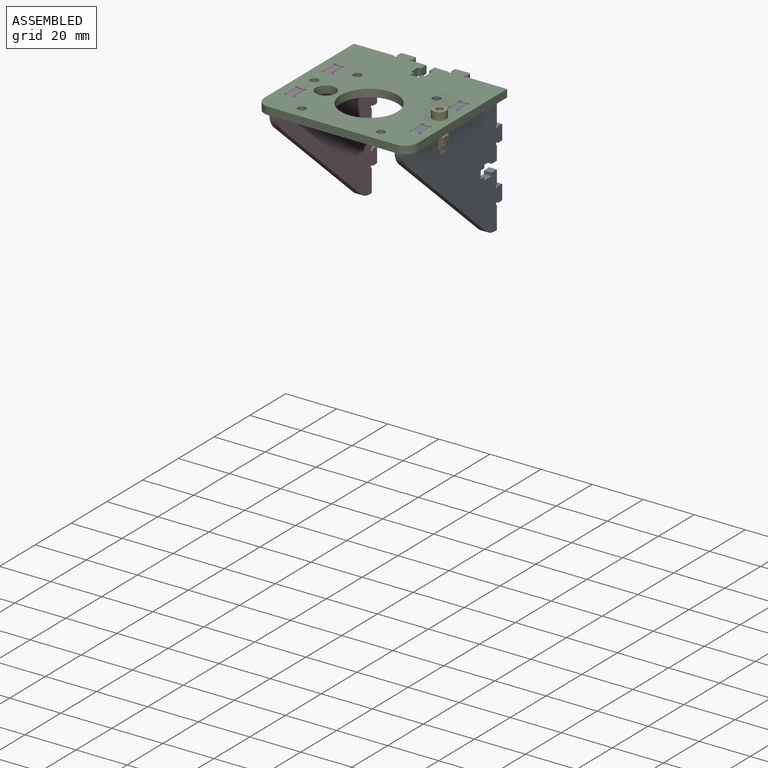
[diagram: assembled view]
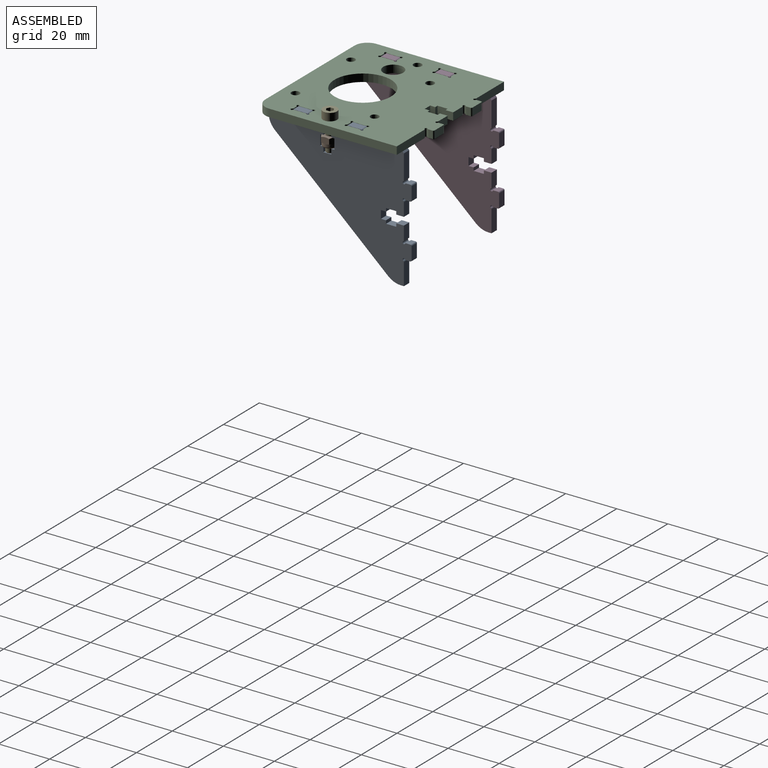
[diagram: assembled view, second angle]
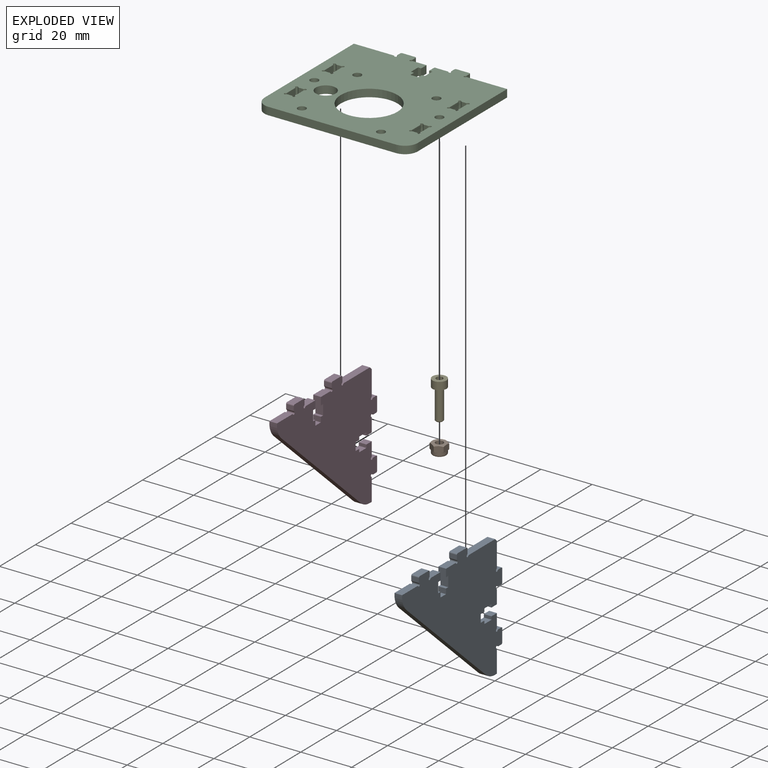
[diagram: exploded view]
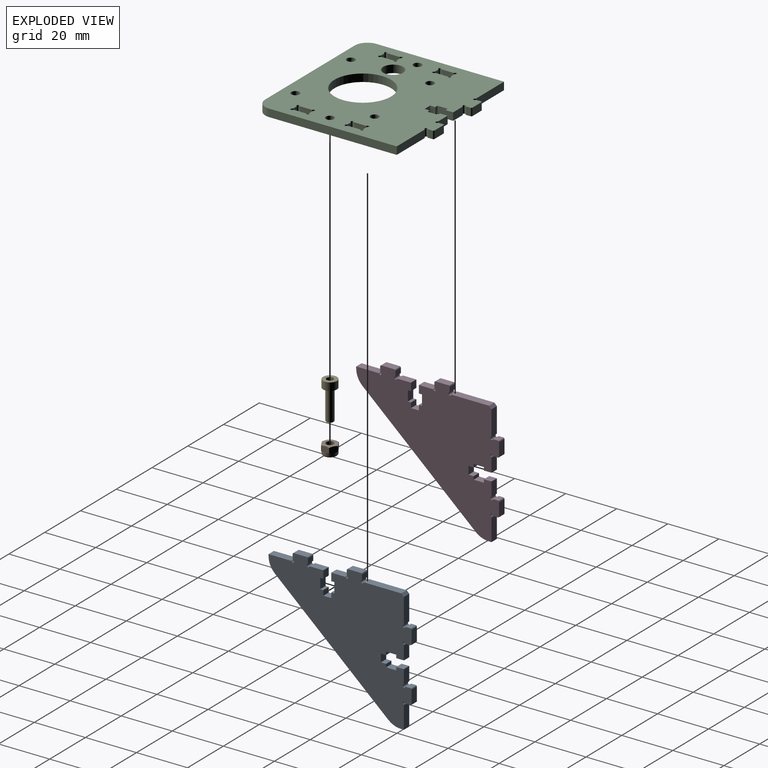
[diagram: exploded view, second angle]
ASSEMBLY  parts=5 mates=4
PART A: 82 faces, bbox 3x51x56 mm
  f0: plane 14.53x3mm, normal (0,-1,0), area 43.6mm2, adj f19,f20,f21,f80
  f1: plane 3x1.63mm, normal (0,0,1), area 4.9mm2, adj f19,f20,f67,f81
  f2: plane 5.18x3mm, normal (0,-1,0), area 15.6mm2, adj f19,f20,f53,f77
  f3: plane 3x1.63mm, normal (0,0,-1), area 4.9mm2, adj f19,f20,f66,f78
  f4: plane 8.53x3mm, normal (0,-1,0), area 25.6mm2, adj f17,f19,f20,f74
  f5: plane 3x1.63mm, normal (0,0,-1), area 4.9mm2, adj f19,f20,f69,f75
  f6: plane 5.18x3mm, normal (0,-1,0), area 15.6mm2, adj f19,f20,f54,f71
  f7: plane 3x1.63mm, normal (0,0,1), area 4.9mm2, adj f19,f20,f68,f72
  f8: plane 8.53x3mm, normal (0,0,1), area 25.6mm2, adj f16,f19,f20,f51
  f9: plane 3x1.63mm, normal (0,1,0), area 4.9mm2, adj f19,f20,f38,f52
  f10: plane 5.18x3mm, normal (0,0,1), area 15.6mm2, adj f19,f20,f24,f48
  f11: plane 3x1.63mm, normal (0,-1,0), area 4.9mm2, adj f19,f20,f37,f49
  f12: plane 9.53x3mm, normal (0,0,1), area 28.6mm2, adj f19,f20,f21,f45
  f13: plane 3x1.63mm, normal (0,-1,0), area 4.9mm2, adj f19,f20,f40,f46
  f14: plane 5.18x3mm, normal (0,0,1), area 15.6mm2, adj f19,f20,f25,f42
  f15: plane 3x1.63mm, normal (0,1,0), area 4.9mm2, adj f19,f20,f39,f43
  f16: plane 3x1.13mm, normal (0,1,0), area 3.4mm2, adj f8,f19,f20,f23
  f17: plane 3x0.65mm, normal (0,0,-1), area 2mm2, adj f4,f19,f20,f22
  f18: plane 44.37x39.85mm, normal (0,0.74,-0.67), area 178.9mm2, adj f19,f20,f22,f23
  f19: plane 56x51mm, normal (1,0,0), area 1454.2mm2, adj f0,f1,f2,f3,f4,f5,f6,f7
  f20: plane 56x51mm, normal (-1,0,0), area 1454.2mm2, adj f0,f1,f2,f3,f4,f5,f6,f7
  f21: plane 3x1mm, normal (0,-0.71,0.71), area 4.2mm2, adj f0,f12,f19,f20
  f22: cylinder r=7.5mm len=5.58mm, axis (-1,0,0), area 18.9mm2, adj f17,f18,f19,f20
  f23: cylinder r=7.5mm len=5.01mm, axis (-1,0,0), area 16.5mm2, adj f16,f18,f19,f20
  f24: plane 3x3mm, normal (0,-1,0), area 9mm2, adj f10,f19,f20,f34
  f25: plane 3x3mm, normal (0,1,0), area 9mm2, adj f14,f19,f20,f26
  f26: plane 3x1.23mm, normal (0,0,-1), area 3.7mm2, adj f19,f20,f25,f27
  f27: plane 4x3mm, normal (0,1,0), area 12mm2, adj f19,f20,f26,f28
  f28: plane 3x1.23mm, normal (0,0,1), area 3.7mm2, adj f19,f20,f27,f29
  f29: plane 3x2mm, normal (0,1,0), area 6mm2, adj f19,f20,f28,f30
  f30: plane 3.1x3mm, normal (0,0,1), area 9.3mm2, adj f19,f20,f29,f31
  f31: plane 3x2mm, normal (0,-1,0), area 6mm2, adj f19,f20,f30,f32
  f32: plane 3x1.23mm, normal (0,0,1), area 3.7mm2, adj f19,f20,f31,f33
  f33: plane 4x3mm, normal (0,-1,0), area 12mm2, adj f19,f20,f32,f34
  f34: plane 3x1.23mm, normal (0,0,-1), area 3.7mm2, adj f19,f20,f24,f33
  f35: plane 5x3mm, normal (0,0,1), area 15mm2, adj f19,f20,f39,f40
  f36: plane 5x3mm, normal (0,0,1), area 15mm2, adj f19,f20,f37,f38
  f37: cylinder r=0.5mm len=3mm, axis (-1,0,0), area 2.4mm2, adj f11,f19,f20,f36
  f38: cylinder r=0.5mm len=3mm, axis (-1,0,0), area 2.4mm2, adj f9,f19,f20,f36
  f39: cylinder r=0.5mm len=3mm, axis (-1,0,0), area 2.4mm2, adj f15,f19,f20,f35
  f40: cylinder r=0.5mm len=3mm, axis (-1,0,0), area 2.4mm2, adj f13,f19,f20,f35
  f41: cylinder r=0.5mm len=3mm, axis (1,0,0), area 5.5mm2, adj f19,f20,f42,f43
  f42: cylinder r=0.5mm len=3mm, axis (1,0,0), area 1.6mm2, adj f14,f19,f20,f41
  f43: cylinder r=0.5mm len=3mm, axis (1,0,0), area 1.6mm2, adj f15,f19,f20,f41
  f44: cylinder r=0.5mm len=3mm, axis (1,0,0), area 5.5mm2, adj f19,f20,f45,f46
  f45: cylinder r=0.5mm len=3mm, axis (1,0,0), area 1.6mm2, adj f12,f19,f20,f44
  f46: cylinder r=0.5mm len=3mm, axis (1,0,0), area 1.6mm2, adj f13,f19,f20,f44
  f47: cylinder r=0.5mm len=3mm, axis (1,0,0), area 5.5mm2, adj f19,f20,f48,f49
  f48: cylinder r=0.5mm len=3mm, axis (1,0,0), area 1.6mm2, adj f10,f19,f20,f47
  f49: cylinder r=0.5mm len=3mm, axis (1,0,0), area 1.6mm2, adj f11,f19,f20,f47
  f50: cylinder r=0.5mm len=3mm, axis (1,0,0), area 5.5mm2, adj f19,f20,f51,f52
  f51: cylinder r=0.5mm len=3mm, axis (1,0,0), area 1.6mm2, adj f8,f19,f20,f50
  f52: cylinder r=0.5mm len=3mm, axis (1,0,0), area 1.6mm2, adj f9,f19,f20,f50
  f53: plane 3x3mm, normal (0,0,-1), area 9mm2, adj f2,f19,f20,f63
  f54: plane 3x3mm, normal (0,0,1), area 9mm2, adj f6,f19,f20,f55
  f55: plane 3x1.23mm, normal (0,1,0), area 3.7mm2, adj f19,f20,f54,f56
  f56: plane 4x3mm, normal (0,0,1), area 12mm2, adj f19,f20,f55,f57
  f57: plane 3x1.23mm, normal (0,-1,0), area 3.7mm2, adj f19,f20,f56,f58
  f58: plane 3x2mm, normal (0,0,1), area 6mm2, adj f19,f20,f57,f59
  f59: plane 3.1x3mm, normal (0,-1,0), area 9.3mm2, adj f19,f20,f58,f60
  f60: plane 3x2mm, normal (0,0,-1), area 6mm2, adj f19,f20,f59,f61
  f61: plane 3x1.23mm, normal (0,-1,0), area 3.7mm2, adj f19,f20,f60,f62
  f62: plane 4x3mm, normal (0,0,-1), area 12mm2, adj f19,f20,f61,f63
  f63: plane 3x1.23mm, normal (0,1,0), area 3.7mm2, adj f19,f20,f53,f62
  f64: plane 5x3mm, normal (0,-1,0), area 15mm2, adj f19,f20,f68,f69
  f65: plane 5x3mm, normal (0,-1,0), area 15mm2, adj f19,f20,f66,f67
  f66: cylinder r=0.5mm len=3mm, axis (-1,0,0), area 2.4mm2, adj f3,f19,f20,f65
  f67: cylinder r=0.5mm len=3mm, axis (-1,0,0), area 2.4mm2, adj f1,f19,f20,f65
  f68: cylinder r=0.5mm len=3mm, axis (-1,0,0), area 2.4mm2, adj f7,f19,f20,f64
  f69: cylinder r=0.5mm len=3mm, axis (-1,0,0), area 2.4mm2, adj f5,f19,f20,f64
  f70: cylinder r=0.5mm len=3mm, axis (1,0,0), area 5.5mm2, adj f19,f20,f71,f72
  f71: cylinder r=0.5mm len=3mm, axis (1,0,0), area 1.6mm2, adj f6,f19,f20,f70
  f72: cylinder r=0.5mm len=3mm, axis (1,0,0), area 1.6mm2, adj f7,f19,f20,f70
  f73: cylinder r=0.5mm len=3mm, axis (1,0,0), area 5.5mm2, adj f19,f20,f74,f75
  f74: cylinder r=0.5mm len=3mm, axis (1,0,0), area 1.6mm2, adj f4,f19,f20,f73
  f75: cylinder r=0.5mm len=3mm, axis (1,0,0), area 1.6mm2, adj f5,f19,f20,f73
  f76: cylinder r=0.5mm len=3mm, axis (1,0,0), area 5.5mm2, adj f19,f20,f77,f78
  f77: cylinder r=0.5mm len=3mm, axis (1,0,0), area 1.6mm2, adj f2,f19,f20,f76
  f78: cylinder r=0.5mm len=3mm, axis (1,0,0), area 1.6mm2, adj f3,f19,f20,f76
  f79: cylinder r=0.5mm len=3mm, axis (1,0,0), area 5.5mm2, adj f19,f20,f80,f81
  f80: cylinder r=0.5mm len=3mm, axis (1,0,0), area 1.6mm2, adj f0,f19,f20,f79
  f81: cylinder r=0.5mm len=3mm, axis (1,0,0), area 1.6mm2, adj f1,f19,f20,f79
PART B: 23 faces, bbox 6.6x6.6x4.3 mm
  f0: plane 5.5x5.5mm, normal (0,0,-1), area 16.7mm2, adj f3,f6,f7,f9,f11,f13,f15
  f1: cylinder r=2.75mm len=5.5mm, axis (0,0,-1), area 17.3mm2, adj f4,f5,f8,f10,f12,f14,f22
  f2: plane 4.3x4.3mm, normal (0,0,1), area 7.5mm2, adj f3,f22
  f3: cylinder r=1.5mm len=4mm, axis (0,0,-1), area 37.7mm2, adj f0,f2
  f4: cone r=3.18mm half-angle=60deg, axis (0,0,-1), area 0.7mm2, adj f1,f16,f21
  f5: cone r=3.18mm half-angle=60deg, axis (0,0,-1), area 0.7mm2, adj f1,f16,f17
  f6: cone r=3.18mm half-angle=60deg, axis (0,0,1), area 0.7mm2, adj f0,f16,f21
  f7: cone r=3.18mm half-angle=60deg, axis (0,0,1), area 0.7mm2, adj f0,f16,f17
  f8: cone r=3.18mm half-angle=60deg, axis (0,0,-1), area 0.7mm2, adj f1,f17,f18
  f9: cone r=3.18mm half-angle=60deg, axis (0,0,1), area 0.7mm2, adj f0,f17,f18
  f10: cone r=3.18mm half-angle=60deg, axis (0,0,-1), area 0.7mm2, adj f1,f18,f19
  f11: cone r=3.18mm half-angle=60deg, axis (0,0,1), area 0.7mm2, adj f0,f18,f19
  f12: cone r=3.18mm half-angle=60deg, axis (0,0,-1), area 0.7mm2, adj f1,f19,f20
  f13: cone r=3.18mm half-angle=60deg, axis (0,0,1), area 0.7mm2, adj f0,f19,f20
  f14: cone r=3.18mm half-angle=60deg, axis (0,0,-1), area 0.7mm2, adj f1,f20,f21
  f15: cone r=3.18mm half-angle=60deg, axis (0,0,1), area 0.7mm2, adj f0,f20,f21
  f16: plane 3.01x2.67mm, normal (0.5,-0.87,0), area 7.1mm2, adj f4,f5,f6,f7,f17,f21
  f17: plane 3.01x2.67mm, normal (-0.5,-0.87,0), area 7.1mm2, adj f5,f7,f8,f9,f16,f18
  f18: plane 3.44x2.66mm, normal (-1,0,0), area 7.1mm2, adj f8,f9,f10,f11,f17,f19
  f19: plane 3.01x2.67mm, normal (-0.5,0.87,0), area 7.1mm2, adj f10,f11,f12,f13,f18,f20
  f20: plane 3.01x2.67mm, normal (0.5,0.87,0), area 7.1mm2, adj f12,f13,f14,f15,f19,f21
  f21: plane 3.44x2.66mm, normal (1,0,0), area 7.1mm2, adj f4,f6,f14,f15,f16,f20
  f22: torus R=2.15mm, axis (0,0,1), area 15mm2, adj f1,f2
PART C: 116 faces, bbox 60x58x3 mm
  f0: plane 4.47x3mm, normal (1,0,0), area 13.4mm2, adj f8,f9,f112,f114
  f1: plane 3x1.57mm, normal (0,-1,0), area 4.7mm2, adj f8,f9,f105,f115
  f2: plane 3x1.57mm, normal (0,1,0), area 4.7mm2, adj f8,f9,f109,f111
  f3: plane 4.47x3mm, normal (-1,0,0), area 13.4mm2, adj f8,f9,f106,f108
  f4: plane 4.47x3mm, normal (1,0,0), area 13.4mm2, adj f8,f9,f100,f102
  f5: plane 3x1.57mm, normal (0,1,0), area 4.7mm2, adj f8,f9,f93,f103
  f6: plane 3x1.57mm, normal (0,-1,0), area 4.7mm2, adj f8,f9,f97,f99
  f7: plane 4.47x3mm, normal (-1,0,0), area 13.4mm2, adj f8,f9,f94,f96
  f8: plane 60x58mm, normal (0,0,1), area 2709.8mm2, adj f0,f1,f2,f3,f4,f5,f6,f7
  f9: plane 60x58mm, normal (0,0,-1), area 2709.8mm2, adj f0,f1,f2,f3,f4,f5,f6,f7
  f10: plane 4.47x3mm, normal (1,0,0), area 13.4mm2, adj f8,f9,f87,f89
  f11: plane 3x1.57mm, normal (0,-1,0), area 4.7mm2, adj f8,f9,f80,f90
  f12: plane 3x1.57mm, normal (0,1,0), area 4.7mm2, adj f8,f9,f84,f86
  f13: plane 4.47x3mm, normal (-1,0,0), area 13.4mm2, adj f8,f9,f81,f83
  f14: plane 4.47x3mm, normal (1,0,0), area 13.4mm2, adj f8,f9,f75,f77
  f15: plane 3x1.57mm, normal (0,1,0), area 4.7mm2, adj f8,f9,f68,f78
  f16: plane 3x1.57mm, normal (0,-1,0), area 4.7mm2, adj f8,f9,f72,f74
  f17: plane 4.47x3mm, normal (-1,0,0), area 13.4mm2, adj f8,f9,f69,f71
  f18: plane 15.53x3mm, normal (0,1,0), area 46.6mm2, adj f8,f9,f26,f64
  f19: plane 3x1.63mm, normal (1,0,0), area 4.9mm2, adj f8,f9,f51,f65
  f20: plane 5.18x3mm, normal (0,1,0), area 15.6mm2, adj f8,f9,f37,f61
  f21: plane 3x1.63mm, normal (-1,0,0), area 4.9mm2, adj f8,f9,f50,f62
  f22: plane 15.53x3mm, normal (0,1,0), area 46.6mm2, adj f8,f9,f27,f58
  f23: plane 3x1.63mm, normal (-1,0,0), area 4.9mm2, adj f8,f9,f53,f59
  f24: plane 5.18x3mm, normal (0,1,0), area 15.6mm2, adj f8,f9,f38,f55
  f25: plane 3x1.63mm, normal (1,0,0), area 4.9mm2, adj f8,f9,f52,f56
  f26: plane 50x3mm, normal (1,0,0), area 150mm2, adj f8,f9,f18,f36
  f27: plane 50x3mm, normal (-1,0,0), area 150mm2, adj f8,f9,f22,f35
  f28: cylinder r=1.6mm len=3.2mm, axis (0,0,-1), area 30.2mm2, adj f8,f9
  f29: cylinder r=1.6mm len=3.2mm, axis (0,0,-1), area 30.2mm2, adj f8,f9
  f30: plane 50x3mm, normal (0,-1,0), area 150mm2, adj f8,f9,f35,f36
  f31: cylinder r=11.1mm len=22.2mm, axis (0,0,-1), area 209.2mm2, adj f8,f9
  f32: cylinder r=1.6mm len=3.2mm, axis (0,0,-1), area 30.2mm2, adj f8,f9
  f33: cylinder r=1.6mm len=3.2mm, axis (0,0,-1), area 30.2mm2, adj f8,f9
  f34: cylinder r=3.9mm len=7.8mm, axis (0,0,-1), area 73.5mm2, adj f8,f9
  f35: cylinder r=5mm len=5mm, axis (0,0,-1), area 23.6mm2, adj f8,f9,f27,f30
  f36: cylinder r=5mm len=5mm, axis (0,0,-1), area 23.6mm2, adj f8,f9,f26,f30
  f37: plane 3x3mm, normal (-1,0,0), area 9mm2, adj f8,f9,f20,f47
  f38: plane 3x3mm, normal (1,0,0), area 9mm2, adj f8,f9,f24,f39
  f39: plane 3x1.23mm, normal (0,-1,0), area 3.7mm2, adj f8,f9,f38,f40
  f40: plane 4x3mm, normal (1,0,0), area 12mm2, adj f8,f9,f39,f41
  f41: plane 3x1.23mm, normal (0,1,0), area 3.7mm2, adj f8,f9,f40,f42
  f42: plane 3x2mm, normal (1,0,0), area 6mm2, adj f8,f9,f41,f43
  f43: plane 3.1x3mm, normal (0,1,0), area 9.3mm2, adj f8,f9,f42,f44
  f44: plane 3x2mm, normal (-1,0,0), area 6mm2, adj f8,f9,f43,f45
  f45: plane 3x1.23mm, normal (0,1,0), area 3.7mm2, adj f8,f9,f44,f46
  f46: plane 4x3mm, normal (-1,0,0), area 12mm2, adj f8,f9,f45,f47
  f47: plane 3x1.23mm, normal (0,-1,0), area 3.7mm2, adj f8,f9,f37,f46
  f48: plane 5x3mm, normal (0,1,0), area 15mm2, adj f8,f9,f52,f53
  f49: plane 5x3mm, normal (0,1,0), area 15mm2, adj f8,f9,f50,f51
  f50: cylinder r=0.5mm len=3mm, axis (0,0,-1), area 2.4mm2, adj f8,f9,f21,f49
  f51: cylinder r=0.5mm len=3mm, axis (0,0,-1), area 2.4mm2, adj f8,f9,f19,f49
  f52: cylinder r=0.5mm len=3mm, axis (0,0,-1), area 2.4mm2, adj f8,f9,f25,f48
  f53: cylinder r=0.5mm len=3mm, axis (0,0,-1), area 2.4mm2, adj f8,f9,f23,f48
  f54: cylinder r=0.5mm len=3mm, axis (0,0,1), area 5.5mm2, adj f8,f9,f55,f56
  f55: cylinder r=0.5mm len=3mm, axis (0,0,1), area 1.6mm2, adj f8,f9,f24,f54
  f56: cylinder r=0.5mm len=3mm, axis (0,0,1), area 1.6mm2, adj f8,f9,f25,f54
  f57: cylinder r=0.5mm len=3mm, axis (0,0,1), area 5.5mm2, adj f8,f9,f58,f59
  f58: cylinder r=0.5mm len=3mm, axis (0,0,1), area 1.6mm2, adj f8,f9,f22,f57
  f59: cylinder r=0.5mm len=3mm, axis (0,0,1), area 1.6mm2, adj f8,f9,f23,f57
  f60: cylinder r=0.5mm len=3mm, axis (0,0,1), area 5.5mm2, adj f8,f9,f61,f62
  f61: cylinder r=0.5mm len=3mm, axis (0,0,1), area 1.6mm2, adj f8,f9,f20,f60
  f62: cylinder r=0.5mm len=3mm, axis (0,0,1), area 1.6mm2, adj f8,f9,f21,f60
  f63: cylinder r=0.5mm len=3mm, axis (0,0,1), area 5.5mm2, adj f8,f9,f64,f65
  f64: cylinder r=0.5mm len=3mm, axis (0,0,1), area 1.6mm2, adj f8,f9,f18,f63
  f65: cylinder r=0.5mm len=3mm, axis (0,0,1), area 1.6mm2, adj f8,f9,f19,f63
  f66: cylinder r=1.6mm len=3.2mm, axis (0,0,-1), area 30.2mm2, adj f8,f9
  f67: cylinder r=0.5mm len=3mm, axis (0,0,1), area 5.5mm2, adj f8,f9,f68,f69
  f68: cylinder r=0.5mm len=3mm, axis (0,0,1), area 1.6mm2, adj f8,f9,f15,f67
  f69: cylinder r=0.5mm len=3mm, axis (0,0,1), area 1.6mm2, adj f8,f9,f17,f67
  f70: cylinder r=0.5mm len=3mm, axis (0,0,1), area 5.5mm2, adj f8,f9,f71,f72
  f71: cylinder r=0.5mm len=3mm, axis (0,0,1), area 1.6mm2, adj f8,f9,f17,f70
  f72: cylinder r=0.5mm len=3mm, axis (0,0,1), area 1.6mm2, adj f8,f9,f16,f70
  f73: cylinder r=0.5mm len=3mm, axis (0,0,1), area 5.5mm2, adj f8,f9,f74,f75
  f74: cylinder r=0.5mm len=3mm, axis (0,0,1), area 1.6mm2, adj f8,f9,f16,f73
  f75: cylinder r=0.5mm len=3mm, axis (0,0,1), area 1.6mm2, adj f8,f9,f14,f73
  f76: cylinder r=0.5mm len=3mm, axis (0,0,1), area 5.5mm2, adj f8,f9,f77,f78
  f77: cylinder r=0.5mm len=3mm, axis (0,0,1), area 1.6mm2, adj f8,f9,f14,f76
  f78: cylinder r=0.5mm len=3mm, axis (0,0,1), area 1.6mm2, adj f8,f9,f15,f76
  f79: cylinder r=0.5mm len=3mm, axis (0,0,1), area 5.5mm2, adj f8,f9,f80,f81
  f80: cylinder r=0.5mm len=3mm, axis (0,0,1), area 1.6mm2, adj f8,f9,f11,f79
  f81: cylinder r=0.5mm len=3mm, axis (0,0,1), area 1.6mm2, adj f8,f9,f13,f79
  f82: cylinder r=0.5mm len=3mm, axis (0,0,1), area 5.5mm2, adj f8,f9,f83,f84
  f83: cylinder r=0.5mm len=3mm, axis (0,0,1), area 1.6mm2, adj f8,f9,f13,f82
  f84: cylinder r=0.5mm len=3mm, axis (0,0,1), area 1.6mm2, adj f8,f9,f12,f82
  f85: cylinder r=0.5mm len=3mm, axis (0,0,1), area 5.5mm2, adj f8,f9,f86,f87
  f86: cylinder r=0.5mm len=3mm, axis (0,0,1), area 1.6mm2, adj f8,f9,f12,f85
  f87: cylinder r=0.5mm len=3mm, axis (0,0,1), area 1.6mm2, adj f8,f9,f10,f85
  f88: cylinder r=0.5mm len=3mm, axis (0,0,1), area 5.5mm2, adj f8,f9,f89,f90
  f89: cylinder r=0.5mm len=3mm, axis (0,0,1), area 1.6mm2, adj f8,f9,f10,f88
  f90: cylinder r=0.5mm len=3mm, axis (0,0,1), area 1.6mm2, adj f8,f9,f11,f88
  f91: cylinder r=1.6mm len=3.2mm, axis (0,0,-1), area 30.2mm2, adj f8,f9
  f92: cylinder r=0.5mm len=3mm, axis (0,0,1), area 5.5mm2, adj f8,f9,f93,f94
  f93: cylinder r=0.5mm len=3mm, axis (0,0,1), area 1.6mm2, adj f5,f8,f9,f92
  f94: cylinder r=0.5mm len=3mm, axis (0,0,1), area 1.6mm2, adj f7,f8,f9,f92
  f95: cylinder r=0.5mm len=3mm, axis (0,0,1), area 5.5mm2, adj f8,f9,f96,f97
  f96: cylinder r=0.5mm len=3mm, axis (0,0,1), area 1.6mm2, adj f7,f8,f9,f95
  f97: cylinder r=0.5mm len=3mm, axis (0,0,1), area 1.6mm2, adj f6,f8,f9,f95
  f98: cylinder r=0.5mm len=3mm, axis (0,0,1), area 5.5mm2, adj f8,f9,f99,f100
  f99: cylinder r=0.5mm len=3mm, axis (0,0,1), area 1.6mm2, adj f6,f8,f9,f98
  f100: cylinder r=0.5mm len=3mm, axis (0,0,1), area 1.6mm2, adj f4,f8,f9,f98
  f101: cylinder r=0.5mm len=3mm, axis (0,0,1), area 5.5mm2, adj f8,f9,f102,f103
  f102: cylinder r=0.5mm len=3mm, axis (0,0,1), area 1.6mm2, adj f4,f8,f9,f101
  f103: cylinder r=0.5mm len=3mm, axis (0,0,1), area 1.6mm2, adj f5,f8,f9,f101
  f104: cylinder r=0.5mm len=3mm, axis (0,0,1), area 5.5mm2, adj f8,f9,f105,f106
  f105: cylinder r=0.5mm len=3mm, axis (0,0,1), area 1.6mm2, adj f1,f8,f9,f104
  f106: cylinder r=0.5mm len=3mm, axis (0,0,1), area 1.6mm2, adj f3,f8,f9,f104
  f107: cylinder r=0.5mm len=3mm, axis (0,0,1), area 5.5mm2, adj f8,f9,f108,f109
  f108: cylinder r=0.5mm len=3mm, axis (0,0,1), area 1.6mm2, adj f3,f8,f9,f107
  f109: cylinder r=0.5mm len=3mm, axis (0,0,1), area 1.6mm2, adj f2,f8,f9,f107
  f110: cylinder r=0.5mm len=3mm, axis (0,0,1), area 5.5mm2, adj f8,f9,f111,f112
  f111: cylinder r=0.5mm len=3mm, axis (0,0,1), area 1.6mm2, adj f2,f8,f9,f110
  f112: cylinder r=0.5mm len=3mm, axis (0,0,1), area 1.6mm2, adj f0,f8,f9,f110
  f113: cylinder r=0.5mm len=3mm, axis (0,0,1), area 5.5mm2, adj f8,f9,f114,f115
  f114: cylinder r=0.5mm len=3mm, axis (0,0,1), area 1.6mm2, adj f0,f8,f9,f113
  f115: cylinder r=0.5mm len=3mm, axis (0,0,1), area 1.6mm2, adj f1,f8,f9,f113
PART D: same geometry as A
PART E: 13 faces, bbox 5.5x5.5x15 mm
  f0: plane 5.5x5.5mm, normal (0,0,-1), area 18.3mm2, adj f2,f6,f7,f8,f9,f10,f11
  f1: plane 2.4x2.4mm, normal (0,0,1), area 4.5mm2, adj f5
  f2: cylinder r=2.75mm len=5.5mm, axis (0,0,-1), area 51.8mm2, adj f0,f3
  f3: plane 5.5x5.5mm, normal (0,0,1), area 16.7mm2, adj f2,f4
  f4: cylinder r=1.5mm len=11.7mm, axis (0,0,-1), area 110.3mm2, adj f3,f5
  f5: cone r=1.5mm half-angle=45deg, axis (0,0,-1), area 3.6mm2, adj f1,f4
  f6: plane 1.44x1.3mm, normal (-1,0,0), area 1.9mm2, adj f0,f7,f11,f12
  f7: plane 1.3x1.25mm, normal (-0.5,-0.87,0), area 1.9mm2, adj f0,f6,f8,f12
  f8: plane 1.3x1.25mm, normal (0.5,-0.87,0), area 1.9mm2, adj f0,f7,f9,f12
  f9: plane 1.44x1.3mm, normal (1,0,0), area 1.9mm2, adj f0,f8,f10,f12
  f10: plane 1.3x1.25mm, normal (0.5,0.87,0), area 1.9mm2, adj f0,f9,f11,f12
  f11: plane 1.3x1.25mm, normal (-0.5,0.87,0), area 1.9mm2, adj f0,f6,f10,f12
  f12: plane 2.89x2.5mm, normal (0,0,-1), area 5.4mm2, adj f6,f7,f8,f9,f10,f11
PLACE A rot(axis=(-1,0,0),90deg) t=(-223.75,-19.79,-54.71)mm
PLACE B rot(axis=(1,0,0),180deg) t=(-242.25,-27.81,-119.39)mm
PLACE C rot(axis=(0,-1,0),180deg) t=(-246.75,-32.11,-113.54)mm
PLACE D rot(axis=(-1,0,0),90deg) t=(-272.75,-19.79,-54.71)mm
PLACE E rot(axis=(1,0,0),180deg) t=(-262.25,-27.81,-110.54)mm
MATE fastened B.f1 <-> E.f2  axis (0,0,1) through (-222.25,-27.81,-119.39)mm
MATE fastened A.f6 <-> C.f91  axis (0,0,1) through (-222.25,-27.81,-116.54)mm
MATE fastened D.f6 <-> C.f66  axis (0,0,1) through (-271.25,-27.81,-116.54)mm
MATE fastened E.f2 <-> C.f91  axis (0,0,-1) through (-222.25,-27.81,-113.54)mm
